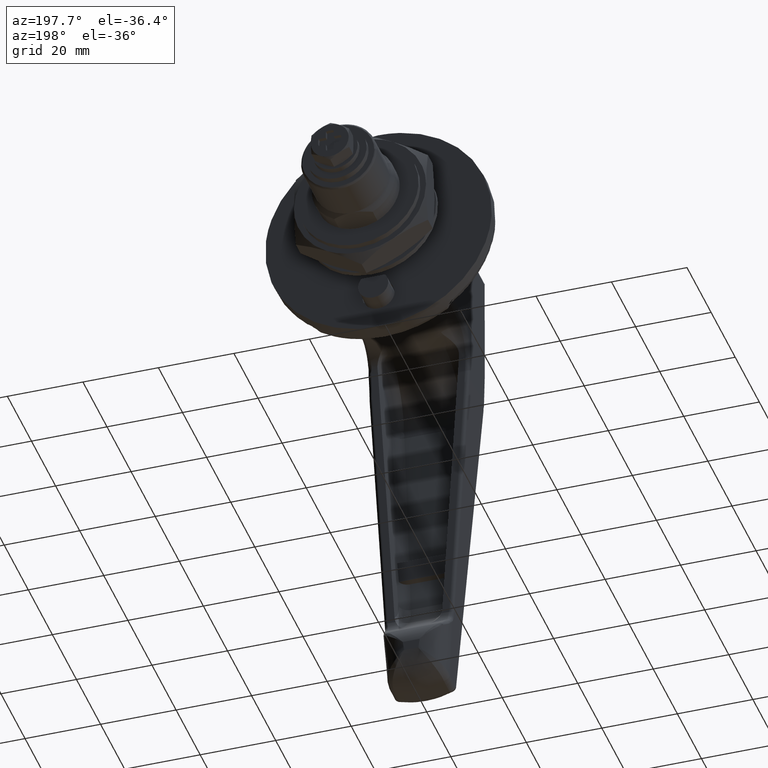
[diagram: clean part render]
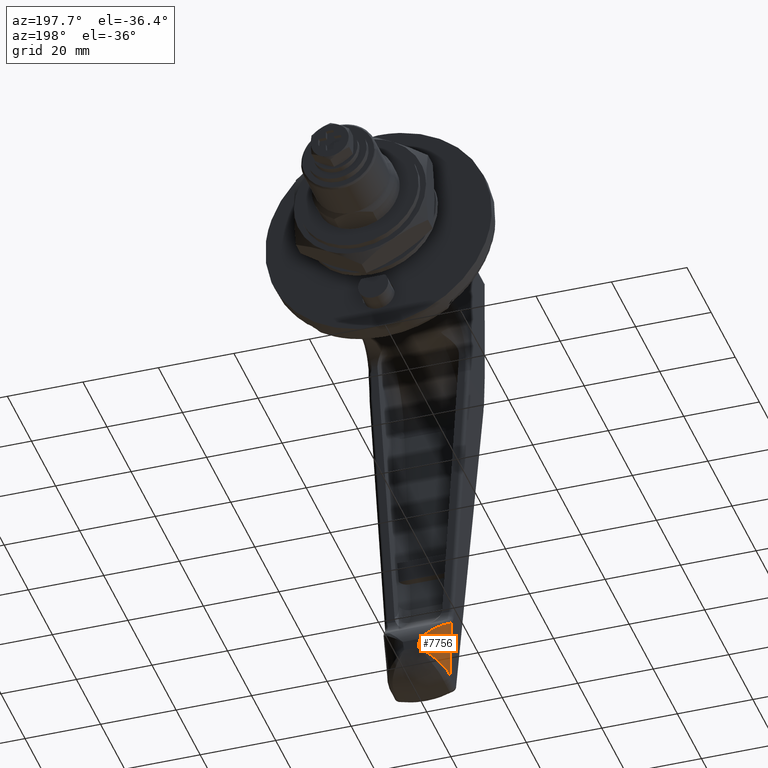
[diagram: same view with one face highlighted and labeled with its STEP entity id]
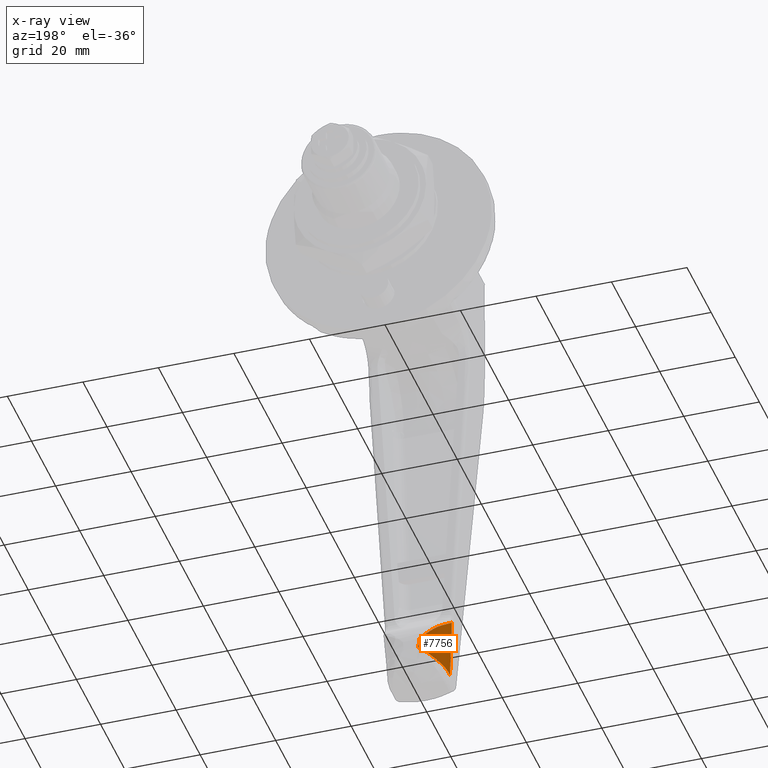
[diagram: x-ray of the same camera — body ghosted, the highlighted face saturated]
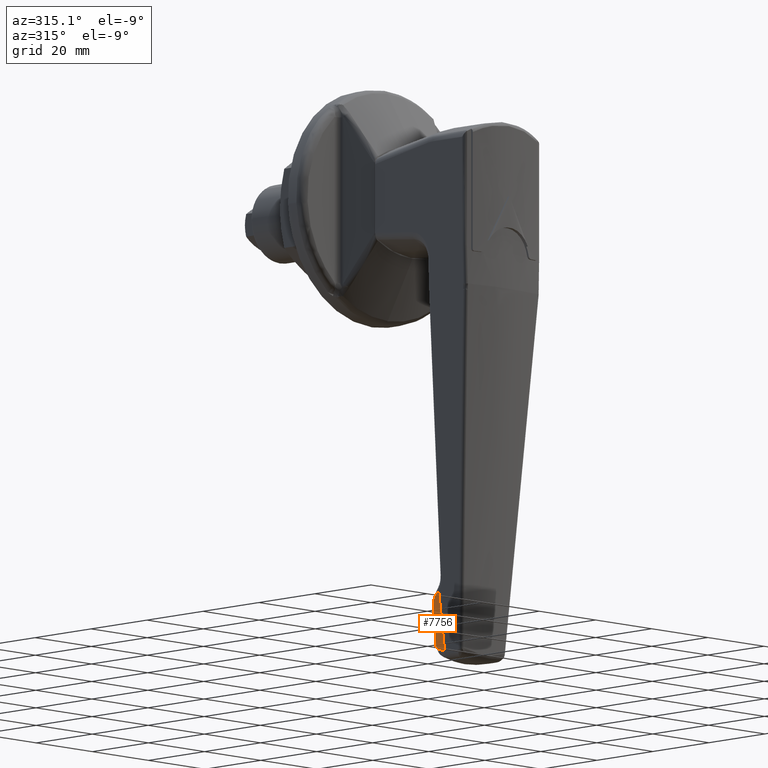
[diagram: same view with one face highlighted and labeled with its STEP entity id]
A machine part, auxiliary view. The second image highlights one B-rep face of the part: STEP entity #7756.
The next image is the same camera in x-ray: the body ghosted, the highlighted face saturated — about 0% of this face is hidden behind the body in this view.
A second angle (auxiliary view) of the same face is appended — the face is thin or edge-on in the first view.
In plain terms, the highlighted face is a freeform B-spline surface patch.
Its self-contained STEP definition (entity closure, byte-faithful):
#5843=CARTESIAN_POINT('',(-32.765593022223747,8.956308236593500,-101.757900828144800));
#5844=VERTEX_POINT('',#5843);
#5912=CARTESIAN_POINT('',(-32.244694892669202,8.901885356179239,-102.235023154359200));
#5913=VERTEX_POINT('',#5912);
#5927=CARTESIAN_POINT('',(-32.765593022223747,8.956308236593490,-101.757900828144800));
#5928=CARTESIAN_POINT('',(-32.724210206954560,8.953932934731336,-101.799942866783000));
#5929=CARTESIAN_POINT('',(-32.682160678715810,8.951050644539311,-101.841550528935300));
#5930=CARTESIAN_POINT('',(-32.597250492678192,8.944238833378867,-101.923409670291800));
#5931=CARTESIAN_POINT('',(-32.468418833319653,8.932435929659077,-102.044416625780600));
#5932=CARTESIAN_POINT('',(-32.335287509796842,8.915602621601360,-102.160155564901900));
#5933=CARTESIAN_POINT('',(-32.244694892669202,8.901885356179239,-102.235023154359200));
#5934=B_SPLINE_CURVE_WITH_KNOTS('',3,(#5927,#5928,#5929,#5930,#5931,#5932,#5933),.UNSPECIFIED.,.F.,.U.,(4,2,1,4),(0.0,0.249999999999995,0.499999999999991,1.0),.UNSPECIFIED.);
#5935=EDGE_CURVE('',#5844,#5913,#5934,.T.);
#6008=CARTESIAN_POINT('',(-29.570555912119151,7.712681626440290,-104.440881089107410));
#6009=VERTEX_POINT('',#6008);
#6023=CARTESIAN_POINT('',(-32.244694892669202,8.901885356179239,-102.235023154359200));
#6024=CARTESIAN_POINT('',(-32.125854096547613,8.883890835267236,-102.333235616002400));
#6025=CARTESIAN_POINT('',(-32.007503476589733,8.861740013966104,-102.431025906224800));
#6026=CARTESIAN_POINT('',(-31.771772814002130,8.809208553304584,-102.625770537909200));
#6027=CARTESIAN_POINT('',(-31.654300183224901,8.778783719564222,-102.722801265033990));
#6028=CARTESIAN_POINT('',(-31.305972092992050,8.676001528101994,-103.010460678486790));
#6029=CARTESIAN_POINT('',(-31.078322004813941,8.592025696286740,-103.198388658849400));
#6030=CARTESIAN_POINT('',(-30.631929632516499,8.393862684114884,-103.566699935362190));
#6031=CARTESIAN_POINT('',(-30.413187059519728,8.279676669412600,-103.747083589088210));
#6032=CARTESIAN_POINT('',(-29.984837312132068,8.020186652845190,-104.100031618162110));
#6033=CARTESIAN_POINT('',(-29.775225320554771,7.874899753305952,-104.272600537861810));
#6034=CARTESIAN_POINT('',(-29.570555912119151,7.712681626440290,-104.440881089107410));
#6035=B_SPLINE_CURVE_WITH_KNOTS('',3,(#6023,#6024,#6025,#6026,#6027,#6028,#6029,#6030,#6031,#6032,#6033,#6034),.UNSPECIFIED.,.F.,.U.,(4,2,2,2,2,4),(0.0,0.124999999999996,0.249999999999993,0.499999999999997,0.749999999999998,1.0),.UNSPECIFIED.);
#6036=EDGE_CURVE('',#5913,#6009,#6035,.T.);
#6095=CARTESIAN_POINT('',(-27.100000000000001,2.230234855366315,-109.313708498984600));
#6096=VERTEX_POINT('',#6095);
#6127=CARTESIAN_POINT('',(-29.570555912119151,7.712681626440290,-104.440881089107410));
#6128=CARTESIAN_POINT('',(-29.351246788120608,7.538860264608467,-104.621198512027410));
#6129=CARTESIAN_POINT('',(-29.150309149125050,7.353850430143207,-104.805767579889410));
#6130=CARTESIAN_POINT('',(-28.779750416315160,6.965382695744141,-105.182811867575500));
#6131=CARTESIAN_POINT('',(-28.610168567388360,6.761896016632099,-105.375291020999000));
#6132=CARTESIAN_POINT('',(-28.299218491099349,6.338793414640884,-105.767890245727500));
#6133=CARTESIAN_POINT('',(-28.157868210712930,6.119164089158628,-105.968011860839700));
#6134=CARTESIAN_POINT('',(-27.965709593153250,5.778676685009772,-106.273906173927100));
#6135=CARTESIAN_POINT('',(-27.904990133727470,5.663308903190576,-106.376843312448200));
#6136=CARTESIAN_POINT('',(-27.791080891358121,5.431254416544089,-106.582653531263300));
#6137=CARTESIAN_POINT('',(-27.737728172474370,5.314291076449516,-106.685776098675500));
#6138=CARTESIAN_POINT('',(-27.587939531966761,4.960793330413902,-106.995834678588590));
#6139=CARTESIAN_POINT('',(-27.501740822275071,4.721661097827876,-107.203461359338800));
#6140=CARTESIAN_POINT('',(-27.354732947028790,4.237237846680007,-107.620756650706100));
#6141=CARTESIAN_POINT('',(-27.293932017697401,3.991943562361904,-107.830424455732100));
#6142=CARTESIAN_POINT('',(-27.221049843266670,3.619747276905866,-108.146618142374190));
#6143=CARTESIAN_POINT('',(-27.199815612945791,3.494970807436517,-108.252298230414600));
#6144=CARTESIAN_POINT('',(-27.163419044468139,3.244036853392247,-108.464253083671390));
#6145=CARTESIAN_POINT('',(-27.148252917735942,3.117783013353223,-108.570608328072790));
#6146=CARTESIAN_POINT('',(-27.124070413328610,2.864971409319173,-108.783068029408200));
#6147=CARTESIAN_POINT('',(-27.115033517080779,2.738304431475652,-108.889265109428290));
#6148=CARTESIAN_POINT('',(-27.106005344062410,2.547937147314331,-109.048536352140600));
#6149=CARTESIAN_POINT('',(-27.103750749365979,2.484412114601327,-109.101629437131900));
#6150=CARTESIAN_POINT('',(-27.101498413573520,2.389075961672877,-109.181232195177100));
#6151=CARTESIAN_POINT('',(-27.100935834871329,2.357288599670078,-109.207760759029200));
#6152=CARTESIAN_POINT('',(-27.100186325268350,2.293697027601832,-109.260807018304900));
#6153=CARTESIAN_POINT('',(-27.099999999999991,2.261675567266901,-109.287504116947300));
#6154=CARTESIAN_POINT('',(-27.100000000000001,2.230234855366319,-109.313708498984600));
#6155=B_SPLINE_CURVE_WITH_KNOTS('',3,(#6127,#6128,#6129,#6130,#6131,#6132,#6133,#6134,#6135,#6136,#6137,#6138,#6139,#6140,#6141,#6142,#6143,#6144,#6145,#6146,#6147,#6148,#6149,#6150,#6151,#6152,#6153,#6154),.UNSPECIFIED.,.F.,.U.,(4,2,2,2,2,2,2,2,2,2,2,2,2,4),(0.0,0.125000000000002,0.250000000000004,0.375000000000006,0.437500000000007,0.500000000000007,0.625000000000005,0.750000000000002,0.812500000000001,0.874999999999999,0.937499999999998,0.968749999999997,0.984374999999999,1.0),.UNSPECIFIED.);
#6156=EDGE_CURVE('',#6009,#6096,#6155,.T.);
#6525=CARTESIAN_POINT('',(-27.100000000000001,1.879582369733885,-111.895773735327400));
#6526=VERTEX_POINT('',#6525);
#6527=CARTESIAN_POINT('',(-33.981590842281364,8.084858411354070,-117.183366468084000));
#6528=VERTEX_POINT('',#6527);
#6529=CARTESIAN_POINT('',(-27.100000000000001,1.879582369733880,-111.895773735327400));
#6530=CARTESIAN_POINT('',(-27.099999999999991,2.251876271627749,-112.217803688522690));
#6531=CARTESIAN_POINT('',(-27.139197394631090,2.623964084839884,-112.532876163052610));
#6532=CARTESIAN_POINT('',(-27.256600881536620,3.180184349342706,-112.996079566092210));
#6533=CARTESIAN_POINT('',(-27.305560446368329,3.365285074149444,-113.148937477529900));
#6534=CARTESIAN_POINT('',(-27.394256440801829,3.642271269659049,-113.376053726953200));
#6535=CARTESIAN_POINT('',(-27.426277567222961,3.734183940854453,-113.451146558233400));
#6536=CARTESIAN_POINT('',(-27.494972210450410,3.916465440818941,-113.599593660019290));
#6537=CARTESIAN_POINT('',(-27.531679662795678,4.006941543961628,-113.673035897706000));
#6538=CARTESIAN_POINT('',(-27.726987719146759,4.455925841991786,-114.036451668559290));
#6539=CARTESIAN_POINT('',(-27.920604379201460,4.804348583505875,-114.315112476073000));
#6540=CARTESIAN_POINT('',(-28.211749758555200,5.224293050508469,-114.649352946297000));
#6541=CARTESIAN_POINT('',(-28.272454175971610,5.307495903612101,-114.715492251733910));
#6542=CARTESIAN_POINT('',(-28.398956572505380,5.472245523023075,-114.846360441553600));
#6543=CARTESIAN_POINT('',(-28.464881746072258,5.553928379257349,-114.911197243607210));
#6544=CARTESIAN_POINT('',(-28.668710393231859,5.794232499092249,-115.101917127595100));
#6545=CARTESIAN_POINT('',(-28.813071122730360,5.948720696779230,-115.224494815216500));
#6546=CARTESIAN_POINT('',(-29.118838238644681,6.245877771143564,-115.460868154526000));
#6547=CARTESIAN_POINT('',(-29.280243101510479,6.388548592185576,-115.574663480458990));
#6548=CARTESIAN_POINT('',(-29.535544276321989,6.593148616725787,-115.738881211850300));
#6549=CARTESIAN_POINT('',(-29.622847303956171,6.659778142428118,-115.792539670588200));
#6550=CARTESIAN_POINT('',(-29.801975577511051,6.789767601515602,-115.897694229612100));
#6551=CARTESIAN_POINT('',(-29.893893365163411,6.853188141476921,-115.949239809639000));
#6552=CARTESIAN_POINT('',(-30.364189416655940,7.161078283837039,-116.201000668217600));
#6553=CARTESIAN_POINT('',(-30.766129809468531,7.372878018785907,-116.379116700509900));
#6554=CARTESIAN_POINT('',(-31.301412665369170,7.591411321710607,-116.574406651615400));
#6555=CARTESIAN_POINT('',(-31.410126667723329,7.632786088728645,-116.612085445275800));
#6556=CARTESIAN_POINT('',(-31.630949651234509,7.710702821140878,-116.684682903241400));
#6557=CARTESIAN_POINT('',(-31.743273996956809,7.747308438726891,-116.719664454579500));
#6558=CARTESIAN_POINT('',(-32.084045552230599,7.849123345035231,-116.820011673758400));
#6559=CARTESIAN_POINT('',(-32.314235248526430,7.905787354950514,-116.880219657006510));
#6560=CARTESIAN_POINT('',(-32.780488198524800,7.996592952608050,-116.988027805386910));
#6561=CARTESIAN_POINT('',(-33.016551551392837,8.030736445708637,-117.035626122578900));
#6562=CARTESIAN_POINT('',(-33.375077417434177,8.064455299481011,-117.097874718486490));
#6563=CARTESIAN_POINT('',(-33.495325881945583,8.072773157244914,-117.117096814382510));
#6564=CARTESIAN_POINT('',(-33.676824492273717,8.080735037277085,-117.143654457018000));
#6565=CARTESIAN_POINT('',(-33.737511774885462,8.082636093524577,-117.152127596784500));
#6566=CARTESIAN_POINT('',(-33.859265697538277,8.084904987509228,-117.168315767624700));
#6567=CARTESIAN_POINT('',(-33.920498003418118,8.085271720107643,-117.176050521953500));
#6568=CARTESIAN_POINT('',(-33.981590842281364,8.084858411354080,-117.183366468083800));
#6569=B_SPLINE_CURVE_WITH_KNOTS('',3,(#6529,#6530,#6531,#6532,#6533,#6534,#6535,#6536,#6537,#6538,#6539,#6540,#6541,#6542,#6543,#6544,#6545,#6546,#6547,#6548,#6549,#6550,#6551,#6552,#6553,#6554,#6555,#6556,#6557,#6558,#6559,#6560,#6561,#6562,#6563,#6564,#6565,#6566,#6567,#6568),.UNSPECIFIED.,.F.,.U.,(4,2,2,2,2,2,2,2,2,2,2,2,2,2,2,2,2,2,2,4),(0.0,0.125000000000003,0.187500000000004,0.218750000000004,0.250000000000004,0.375000000000003,0.406250000000002,0.437500000000002,0.500000000000002,0.562500000000001,0.593750000000000,0.624999999999998,0.749999999999995,0.781249999999996,0.812499999999997,0.874999999999997,0.937499999999997,0.968749999999998,0.984374999999999,1.0),.UNSPECIFIED.);
#6570=EDGE_CURVE('',#6526,#6528,#6569,.T.);
#7695=CARTESIAN_POINT('',(-32.758297035303393,8.961536935544947,-101.665348034304900));
#7696=CARTESIAN_POINT('',(-27.099999999999998,8.961536935544938,-101.665348034304810));
#7697=CARTESIAN_POINT('',(-27.100000000000001,3.312247848915348,-101.346195789427200));
#7698=CARTESIAN_POINT('',(-32.872198023535603,8.879909325155925,-103.110232022869790));
#7699=CARTESIAN_POINT('',(-27.099999999999998,8.879909325155916,-103.110232022869780));
#7700=CARTESIAN_POINT('',(-27.100000000000001,3.116900579455428,-102.784655273258390));
#7701=CARTESIAN_POINT('',(-32.986099011767813,8.798281714766903,-104.555116011434900));
#7702=CARTESIAN_POINT('',(-27.099999999999998,8.798281714766894,-104.555116011434760));
#7703=CARTESIAN_POINT('',(-27.100000000000001,2.921553309995506,-104.223114757089700));
#7704=CARTESIAN_POINT('',(-33.099999999999987,8.716654104377881,-106.0));
#7705=CARTESIAN_POINT('',(-27.099999999999998,8.716654104377874,-105.999999999999740));
#7706=CARTESIAN_POINT('',(-27.100000000000001,2.726206040535585,-105.661574240921000));
#7707=CARTESIAN_POINT('',(-33.396295609733919,8.504312640386127,-109.758639753974510));
#7708=CARTESIAN_POINT('',(-27.099999999999998,8.504312640386120,-109.758639753974380));
#7709=CARTESIAN_POINT('',(-27.100000000000001,2.218040666267930,-109.403501650456410));
#7710=CARTESIAN_POINT('',(-33.692591219467843,8.291971176394373,-113.517279507949100));
#7711=CARTESIAN_POINT('',(-27.099999999999998,8.291971176394364,-113.517279507949140));
#7712=CARTESIAN_POINT('',(-27.100000000000001,1.709875292000275,-113.145429059991700));
#7713=CARTESIAN_POINT('',(-33.988886829201711,8.079629712402619,-117.275919261923800));
#7714=CARTESIAN_POINT('',(-27.099999999999998,8.079629712402607,-117.275919261923860));
#7715=CARTESIAN_POINT('',(-27.100000000000001,1.201709917732616,-116.887356469527110));
#7723=(BOUNDED_SURFACE()B_SPLINE_SURFACE(2,3,((#7695,#7698,#7701,#7704,#7707,#7710,#7713),(#7696,#7699,#7702,#7705,#7708,#7711,#7714),(#7697,#7700,#7703,#7706,#7709,#7712,#7715)),.UNSPECIFIED.,.F.,.F.,.U.)B_SPLINE_SURFACE_WITH_KNOTS((3,3),(4,3,4),(0.0,11.413881417234929),(0.0,4.354989802604377,15.683814766939760),.UNSPECIFIED.)GEOMETRIC_REPRESENTATION_ITEM()RATIONAL_B_SPLINE_SURFACE(((1.0,1.0,1.0,1.0,1.0,1.0,1.0),(0.707106781186548,0.707106781186548,0.707106781186548,0.707106781186548,0.707106781186548,0.707106781186548,0.707106781186548),(1.0,1.0,1.0,1.0,1.0,1.0,1.0)))REPRESENTATION_ITEM('')SURFACE());
#7724=ORIENTED_EDGE('',*,*,#6036,.T.);
#7725=ORIENTED_EDGE('',*,*,#6156,.T.);
#7726=CARTESIAN_POINT('',(-27.100000000000001,2.054908612550108,-110.604741117156000));
#7727=VERTEX_POINT('',#7726);
#7728=CARTESIAN_POINT('',(-27.100000000000001,2.054908612550108,-110.604741117156000));
#7729=CARTESIAN_POINT('',(-27.100000000000001,2.113350693488845,-110.174396911098900));
#7730=CARTESIAN_POINT('',(-27.100000000000001,2.171792774427581,-109.744052705041700));
#7731=CARTESIAN_POINT('',(-27.100000000000001,2.230234855366318,-109.313708498984600));
#7732=B_SPLINE_CURVE_WITH_KNOTS('',3,(#7728,#7729,#7730,#7731),.UNSPECIFIED.,.F.,.U.,(4,4),(0.507618132198583,0.520345532390288),.UNSPECIFIED.);
#7733=EDGE_CURVE('',#7727,#6096,#7732,.T.);
#7734=ORIENTED_EDGE('',*,*,#7733,.F.);
#7735=CARTESIAN_POINT('',(-27.100000000000001,1.879582369733899,-111.895773735327400));
#7736=CARTESIAN_POINT('',(-27.100000000000001,1.938024450672635,-111.465429529270300));
#7737=CARTESIAN_POINT('',(-27.100000000000001,1.996466531611371,-111.035085323213200));
#7738=CARTESIAN_POINT('',(-27.100000000000001,2.054908612550108,-110.604741117156000));
#7739=B_SPLINE_CURVE_WITH_KNOTS('',3,(#7735,#7736,#7737,#7738),.UNSPECIFIED.,.F.,.U.,(4,4),(0.494890732006878,0.507618132198583),.UNSPECIFIED.);
#7740=EDGE_CURVE('',#6526,#7727,#7739,.T.);
#7741=ORIENTED_EDGE('',*,*,#7740,.F.);
#7742=ORIENTED_EDGE('',*,*,#6570,.T.);
#7743=CARTESIAN_POINT('',(-32.765593022223712,8.956308236593506,-101.757900828144700));
#7744=CARTESIAN_POINT('',(-32.877062014815813,8.876423525854964,-103.171933885429790));
#7745=CARTESIAN_POINT('',(-32.988531007407900,8.796538815116422,-104.585966942714900));
#7746=CARTESIAN_POINT('',(-33.099999999999987,8.716654104377881,-106.0));
#7747=CARTESIAN_POINT('',(-33.393863614093803,8.506055540036604,-109.727788822694710));
#7748=CARTESIAN_POINT('',(-33.687727228187612,8.295456975695332,-113.455577645389300));
#7749=CARTESIAN_POINT('',(-33.981590842281371,8.084858411354055,-117.183366468084100));
#7750=B_SPLINE_CURVE_WITH_KNOTS('',3,(#7743,#7744,#7745,#7746,#7747,#7748,#7749),.UNSPECIFIED.,.F.,.U.,(4,3,4),(0.417252876407136,0.458886859136457,0.568645746782704),.UNSPECIFIED.);
#7751=EDGE_CURVE('',#5844,#6528,#7750,.T.);
#7752=ORIENTED_EDGE('',*,*,#7751,.F.);
#7753=ORIENTED_EDGE('',*,*,#5935,.T.);
#7754=EDGE_LOOP('',(#7724,#7725,#7734,#7741,#7742,#7752,#7753));
#7755=FACE_OUTER_BOUND('',#7754,.T.);
#7756=ADVANCED_FACE('',(#7755),#7723,.T.);